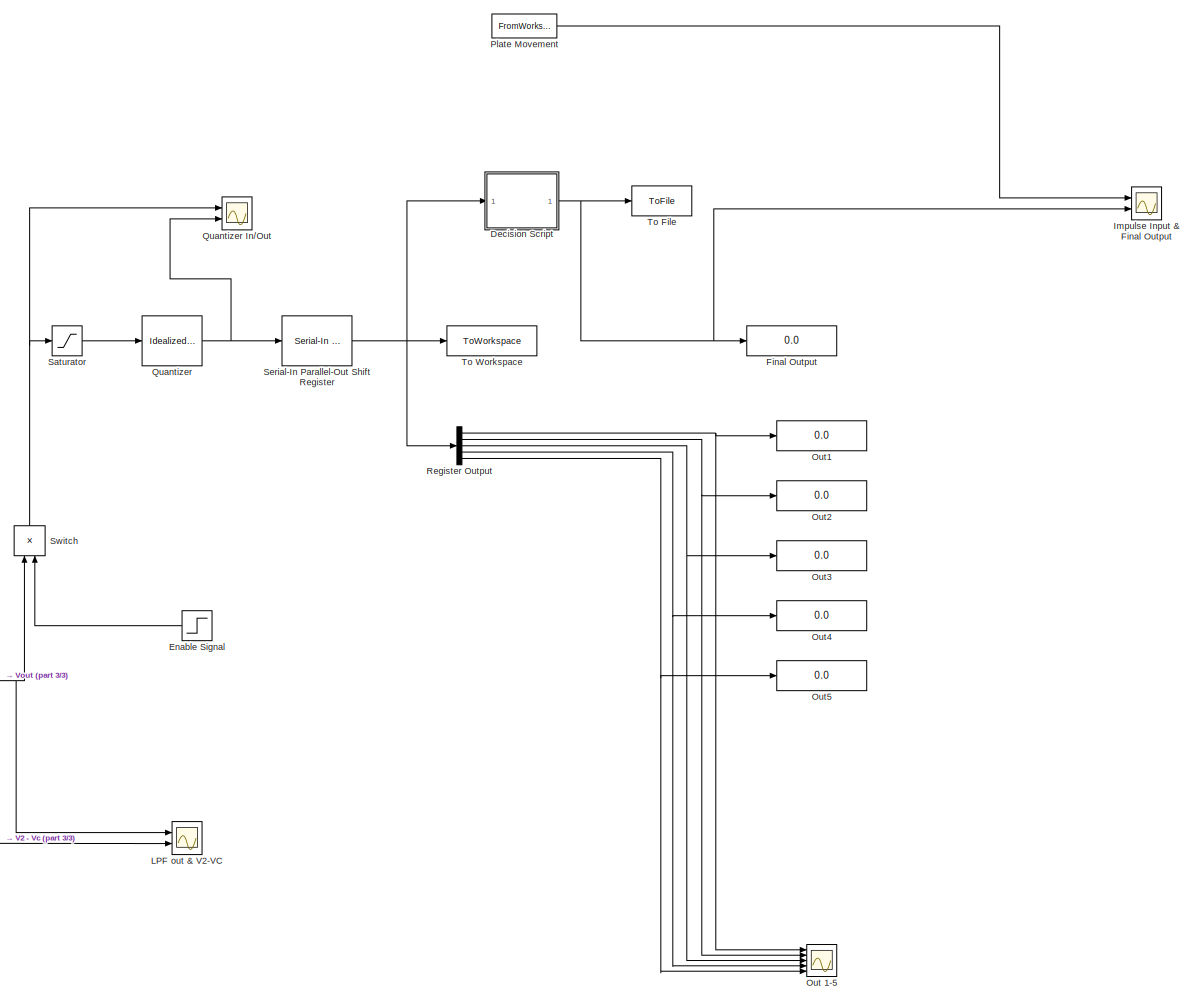
[diagram: root canvas - part 1/3, right side, full height]
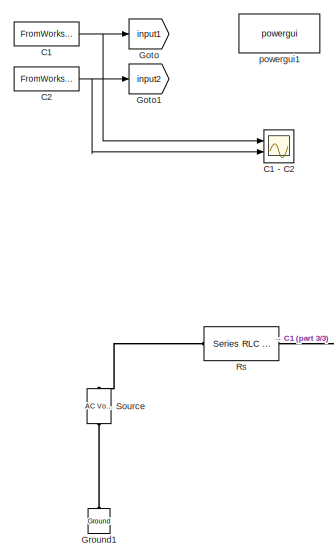
[diagram: root canvas - part 2/3, middle left region]
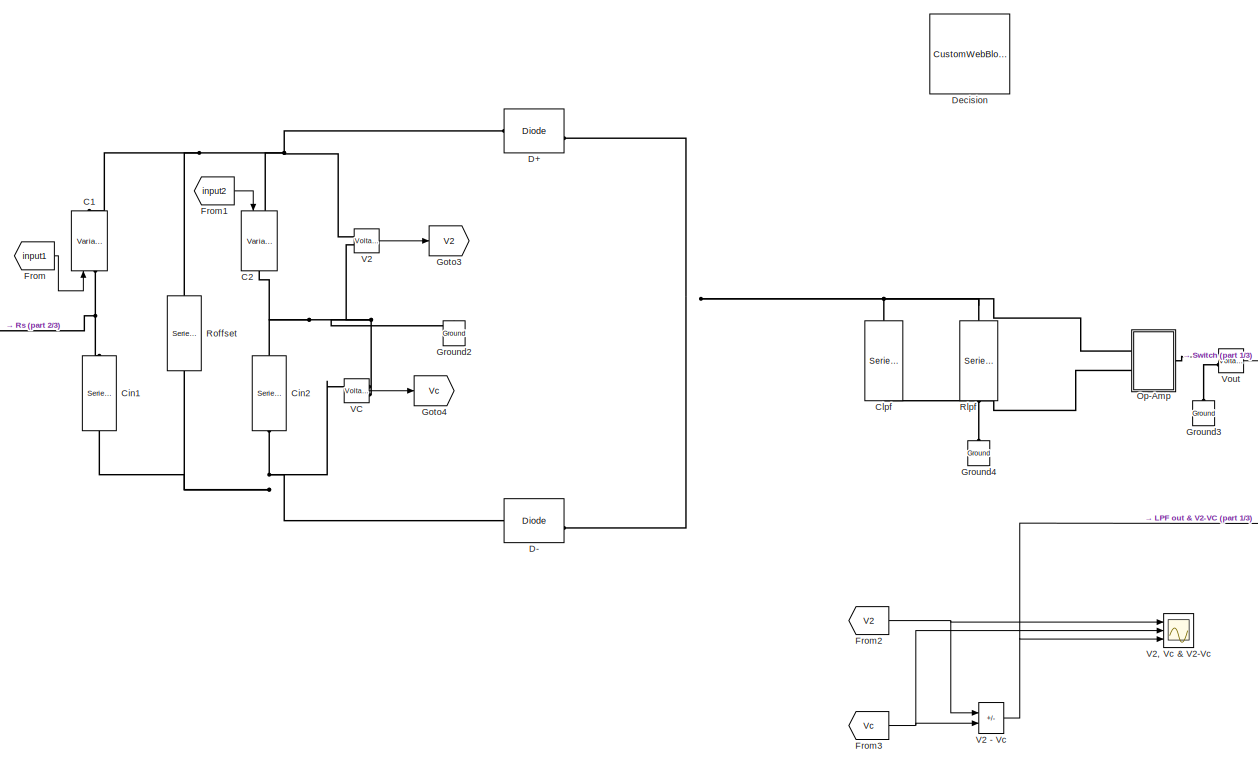
[diagram: root canvas - part 3/3, central region]
MODEL slx_b4848499d454
KIND model
CONFIG AbsTol = auto
CONFIG EnableMultiTasking = off
CONFIG FixedStep = auto
CONFIG MaxStep = 1e-5
CONFIG MinStep = auto
CONFIG RelTol = 1e-3
CONFIG SampleTimeConstraint = Unconstrained
CONFIG SolverName = ode23tb
CONFIG StartTime = 0.0
CONFIG StopTime = 0.0015
BLOCK [Reference] C1  REF=spsVariableCapacitorLib/Variable Capacitor
  NameLocation = right
  Ports = [1, 0, 0, 0, 0, 1, 1]
  SourceBlock = spsVariableCapacitorLib/Variable Capacitor
  SourceProductBaseCode = PS
  SourceType = Variable Capacitor
BLOCK [FromWorkspace] C1 
  VariableName = input_C1
BLOCK [Scope] C1 - C2
  Floating = off
  NumInputPorts = 2
  Ports = [2]
  ScopeSpecificationString = Simulink.scopes.TimeScopeBlockCfg('CurrentConfiguration', extmgr.ConfigurationSet(extmgr.Configuration('Core','General UI',true),extmgr.Configuration('Core','Source UI',true),extmgr.Configuration('Sources','WiredSimulink',true,'DataLoggingVariableName','ScopeData2'),extmgr.Configuration('Visuals','Time Domain',true,'SerializedDisplays',{struct('MinYLimReal','0.0000000000','MaxYLimReal','0.00000000...<+2085ch>
BLOCK [Reference] C2  REF=spsVariableCapacitorLib/Variable Capacitor
  NameLocation = right
  Ports = [1, 0, 0, 0, 0, 1, 1]
  SourceBlock = spsVariableCapacitorLib/Variable Capacitor
  SourceProductBaseCode = PS
  SourceType = Variable Capacitor
BLOCK [FromWorkspace] C2 
  VariableName = input_C2
BLOCK [Reference] Cin1  REF=spsSeriesRLCBranchLib/Series RLC Branch
  NameLocation = left
  Ports = [0, 0, 0, 0, 0, 1, 1]
  SourceBlock = spsSeriesRLCBranchLib/Series RLC Branch
  SourceProductBaseCode = PS
  SourceType = Series RLC Branch
BLOCK [Reference] Cin2  REF=spsSeriesRLCBranchLib/Series RLC Branch
  NameLocation = right
  Ports = [0, 0, 0, 0, 0, 1, 1]
  SourceBlock = spsSeriesRLCBranchLib/Series RLC Branch
  SourceProductBaseCode = PS
  SourceType = Series RLC Branch
BLOCK [Reference] Clpf  REF=spsSeriesRLCBranchLib/Series RLC Branch
  NameLocation = left
  Ports = [0, 0, 0, 0, 0, 1, 1]
  SourceBlock = spsSeriesRLCBranchLib/Series RLC Branch
  SourceProductBaseCode = PS
  SourceType = Series RLC Branch
BLOCK [Reference] D+  REF=spsDiodeLib/Diode
  Ports = [0, 1, 0, 0, 0, 1, 1]
  SourceBlock = spsDiodeLib/Diode
  SourceProductBaseCode = PS
  SourceType = Diode
BLOCK [Reference] D-  REF=spsDiodeLib/Diode
  Ports = [0, 1, 0, 0, 0, 1, 1]
  SourceBlock = spsDiodeLib/Diode
  SourceProductBaseCode = PS
  SourceType = Diode
BLOCK [CustomWebBlock] Decision
  Configuration = {"components":[{"name":"BackgroundImageComponent","settings":{"image":{"size":[150,150],"src":"data:image\/svg+xml;base64,PHN2ZyB4bWxucz0iaHR0cDovL3d3dy53My5vcmcvMjAwMC9zdmciIHhtbG5zOnhsaW5rPSJodHRwOi8vd3d3LnczLm9yZy8xOTk5L3hsaW5rIiB2aWV3Qm94PSIwIDAgNTAwIDUwMCI+PGRlZnM+PHN0eWxlPi5he2ZpbGw6dXJsKCNhKTt9LmJ7ZmlsbDp1cmwoI2IpO30uY3tmaWxsOnVybCgjYyk7fTwvc3R5bGU+PHJhZGlhbEdyYWRpZW50IGlkPSJhIiBjeD0iMjgzLj...<+21337ch>
  LabelPosition = Hide
  ShowInitialText = on
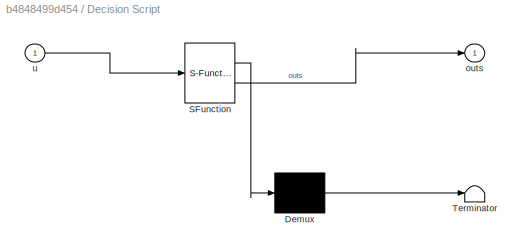
BLOCK [SubSystem] Decision Script
  ErrorFcn = Stateflow.Translate.translate
  PermitHierarchicalResolution = ExplicitOnly
  Ports = [1, 1]
  RequestExecContextInheritance = off
  SFBlockType = MATLAB Function
  TreatAsAtomicUnit = on
BLOCK [Demux] Decision Script/ Demux 
  Outputs = 1
  Ports = [1, 1]
BLOCK [S-Function] Decision Script/ SFunction 
  EnableBusSupport = on
  FunctionName = sf_sfun
  PortCounts = [1 2]
  Ports = [1, 2]
  SFcnIsStateOwnerBlock = off
  SFunctionDeploymentMode = off
  Tag = Stateflow S-Function 2
BLOCK [Terminator] Decision Script/ Terminator 
BLOCK [Outport] Decision Script/outs
BLOCK [Inport] Decision Script/u
BLOCK [Step] Enable  Signal
  SampleTime = 0
  Time = 3e-4
BLOCK [Display] Final Output
  Decimation = 1
  Ports = [1]
BLOCK [From] From
  GotoTag = input1
BLOCK [From] From1
  GotoTag = input2
BLOCK [From] From2
  GotoTag = V2
BLOCK [From] From3
  GotoTag = Vc
BLOCK [Goto] Goto
  GotoTag = input1
BLOCK [Goto] Goto1
  GotoTag = input2
BLOCK [Goto] Goto3
  GotoTag = V2
BLOCK [Goto] Goto4
  GotoTag = Vc
BLOCK [Reference] Ground1  REF=spsGroundLib/Ground
  NameLocation = right
  Ports = [0, 0, 0, 0, 0, 1]
  SourceBlock = spsGroundLib/Ground
  SourceProductBaseCode = PS
  SourceType = Ground
BLOCK [Reference] Ground2  REF=spsGroundLib/Ground
  NameLocation = right
  Ports = [0, 0, 0, 0, 0, 1]
  SourceBlock = spsGroundLib/Ground
  SourceProductBaseCode = PS
  SourceType = Ground
BLOCK [Reference] Ground3  REF=spsGroundLib/Ground
  NameLocation = right
  Ports = [0, 0, 0, 0, 0, 1]
  SourceBlock = spsGroundLib/Ground
  SourceProductBaseCode = PS
  SourceType = Ground
BLOCK [Reference] Ground4  REF=spsGroundLib/Ground
  NameLocation = right
  Ports = [0, 0, 0, 0, 0, 1]
  SourceBlock = spsGroundLib/Ground
  SourceProductBaseCode = PS
  SourceType = Ground
BLOCK [Scope] Impulse Input & Final Output
  Floating = off
  NumInputPorts = 2
  Ports = [2]
  ScopeSpecificationString = Simulink.scopes.TimeScopeBlockCfg('CurrentConfiguration', extmgr.ConfigurationSet(extmgr.Configuration('Core','General UI',true),extmgr.Configuration('Core','Source UI',true),extmgr.Configuration('Sources','WiredSimulink',true,'DataLoggingVariableName','ScopeData1'),extmgr.Configuration('Visuals','Time Domain',true,'SerializedDisplays',{struct('MinYLimReal','-0.0118','MaxYLimReal','0.01968','YLabe...<+2098ch>
BLOCK [Scope] LPF out & V2-VC
  Floating = off
  NumInputPorts = 2
  Ports = [2]
  ScopeSpecificationString = Simulink.scopes.TimeScopeBlockCfg('CurrentConfiguration', extmgr.ConfigurationSet(extmgr.Configuration('Core','General UI',true),extmgr.Configuration('Core','Source UI',true),extmgr.Configuration('Sources','WiredSimulink',true,'DataLoggingVariableName','ScopeData3'),extmgr.Configuration('Visuals','Time Domain',true,'SerializedDisplays',{struct('MinYLimReal','-1.02149','MaxYLimReal','9.1934','YLabe...<+2054ch>
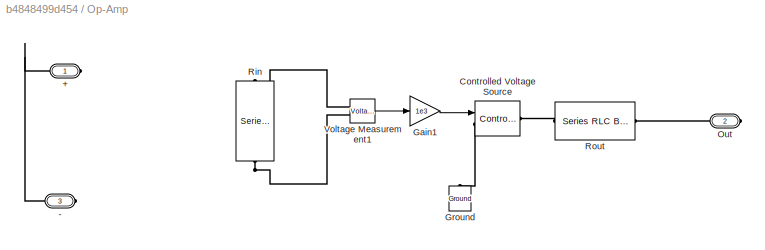
BLOCK [SubSystem] Op-Amp
  Ports = [0, 0, 0, 0, 0, 2, 1]
  RequestExecContextInheritance = off
BLOCK [PMIOPort] Op-Amp/+
  Side = Left
BLOCK [PMIOPort] Op-Amp/-
  Port = 3
  Side = Left
BLOCK [Reference] Op-Amp/Controlled Voltage Source  REF=spsControlledVoltageSourceLib/Controlled Voltage Source
  NameLocation = left
  Ports = [1, 0, 0, 0, 0, 1, 1]
  SourceBlock = spsControlledVoltageSourceLib/Controlled Voltage Source
  SourceProductBaseCode = PS
  SourceType = Controlled Voltage Source
BLOCK [Gain] Op-Amp/Gain1
  Gain = 1e3
BLOCK [Reference] Op-Amp/Ground  REF=spsGroundLib/Ground
  NameLocation = right
  Ports = [0, 0, 0, 0, 0, 1]
  SourceBlock = spsGroundLib/Ground
  SourceProductBaseCode = PS
  SourceType = Ground
BLOCK [PMIOPort] Op-Amp/Out
  Port = 2
  Side = Right
BLOCK [Reference] Op-Amp/Rin  REF=spsSeriesRLCBranchLib/Series RLC Branch
  NameLocation = left
  Ports = [0, 0, 0, 0, 0, 1, 1]
  SourceBlock = spsSeriesRLCBranchLib/Series RLC Branch
  SourceProductBaseCode = PS
  SourceType = Series RLC Branch
BLOCK [Reference] Op-Amp/Rout  REF=spsSeriesRLCBranchLib/Series RLC Branch
  Ports = [0, 0, 0, 0, 0, 1, 1]
  SourceBlock = spsSeriesRLCBranchLib/Series RLC Branch
  SourceProductBaseCode = PS
  SourceType = Series RLC Branch
BLOCK [Reference] Op-Amp/Voltage Measurement1  REF=spsVoltageMeasurementLib/Voltage Measurement
  Ports = [0, 1, 0, 0, 0, 2]
  SourceBlock = spsVoltageMeasurementLib/Voltage Measurement
  SourceProductBaseCode = PS
  SourceType = Voltage Measurement
  UserDataPersistent = on
BLOCK [Scope] Out 1-5
  Floating = off
  NumInputPorts = 5
  Ports = [5]
  ScopeSpecificationString = Simulink.scopes.TimeScopeBlockCfg('CurrentConfiguration', extmgr.ConfigurationSet(extmgr.Configuration('Core','General UI',true),extmgr.Configuration('Core','Source UI',true),extmgr.Configuration('Sources','WiredSimulink',true,'DataLoggingVariableName','ScopeData1'),extmgr.Configuration('Visuals','Time Domain',true,'SerializedDisplays',{struct('MinYLimReal','-24.375','MaxYLimReal','219.375','YLabe...<+1554ch>
BLOCK [Display] Out1
  Decimation = 1
  Ports = [1]
BLOCK [Display] Out2
  Decimation = 1
  Ports = [1]
BLOCK [Display] Out3
  Decimation = 1
  Ports = [1]
BLOCK [Display] Out4
  Decimation = 1
  Ports = [1]
BLOCK [Display] Out5
  Decimation = 1
  Ports = [1]
BLOCK [FromWorkspace] Plate Movement
  VariableName = input_x
BLOCK [Reference] Quantizer  REF=simulink_extras/Additional
Discrete/Idealized ADC quantizer
  AttributesFormatString = (settings: %<NumberOfConverterBits>-bit converter\nVmin: %<Vmin>, Vmax: %<Vmax>)
  Ports = [1, 1]
  SourceBlock = simulink_extras/Additional\nDiscrete/Idealized ADC quantizer
  SourceProductBaseCode = SL
  SourceType = IdealADC
BLOCK [Scope] Quantizer In//Out
  Floating = off
  NumInputPorts = 2
  Ports = [2]
  ScopeSpecificationString = Simulink.scopes.TimeScopeBlockCfg('CurrentConfiguration', extmgr.ConfigurationSet(extmgr.Configuration('Core','General UI',true),extmgr.Configuration('Core','Source UI',true),extmgr.Configuration('Sources','WiredSimulink',true,'DataLoggingVariableName','ScopeData1'),extmgr.Configuration('Visuals','Time Domain',true,'SerializedDisplays',{struct('MinYLimReal','-0.38188','MaxYLimReal','3.4369','YLabe...<+2057ch>
BLOCK [Demux] Register Output
  Outputs = 5
  Ports = [1, 5]
BLOCK [Reference] Rlpf  REF=spsSeriesRLCBranchLib/Series RLC Branch
  NameLocation = left
  Ports = [0, 0, 0, 0, 0, 1, 1]
  SourceBlock = spsSeriesRLCBranchLib/Series RLC Branch
  SourceProductBaseCode = PS
  SourceType = Series RLC Branch
BLOCK [Reference] Roffset  REF=spsSeriesRLCBranchLib/Series RLC Branch
  NameLocation = right
  Ports = [0, 0, 0, 0, 0, 1, 1]
  SourceBlock = spsSeriesRLCBranchLib/Series RLC Branch
  SourceProductBaseCode = PS
  SourceType = Series RLC Branch
BLOCK [Reference] Rs  REF=spsSeriesRLCBranchLib/Series RLC Branch
  NameLocation = top
  Ports = [0, 0, 0, 0, 0, 1, 1]
  SourceBlock = spsSeriesRLCBranchLib/Series RLC Branch
  SourceProductBaseCode = PS
  SourceType = Series RLC Branch
BLOCK [Saturate] Saturator
  LowerLimit = 0
  UpperLimit = 4
BLOCK [Reference] Serial-In Parallel-Out Shift Register  REF=eeGeneralControl/Serial-In Parallel-Out
Shift Register
  Ports = [1, 1]
  SourceBlock = eeGeneralControl/Serial-In Parallel-Out\nShift Register
  SourceProductBaseCode = PS
  SourceType = Serial-In Parallel-Out Shift Register
BLOCK [Reference] Source  REF=spsACVoltageSourceLib/AC Voltage Source
  Ports = [0, 0, 0, 0, 0, 1, 1]
  SourceBlock = spsACVoltageSourceLib/AC Voltage Source
  SourceProductBaseCode = PS
  SourceType = AC Voltage Source
BLOCK [Product] Switch
  Inputs = **
  NameLocation = right
  Ports = [2, 1]
BLOCK [ToFile] To File
  Filename = outputs.mat
  MatrixName = outputs
  Ports = [1]
BLOCK [ToWorkspace] To Workspace
  FixptAsFi = on
  MaxDataPoints = inf
  Ports = [1]
  SampleTime = -1
  SaveFormat = Timeseries
  VariableName = simout
BLOCK [Reference] V2  REF=spsVoltageMeasurementLib/Voltage Measurement
  Ports = [0, 1, 0, 0, 0, 2]
  SourceBlock = spsVoltageMeasurementLib/Voltage Measurement
  SourceProductBaseCode = PS
  SourceType = Voltage Measurement
  UserDataPersistent = on
BLOCK [Sum] V2 - Vc
  IconShape = rectangular
  Inputs = +-
  Ports = [2, 1]
BLOCK [Scope] V2, Vc & V2-Vc
  Floating = off
  NumInputPorts = 3
  Ports = [3]
  ScopeSpecificationString = Simulink.scopes.TimeScopeBlockCfg('CurrentConfiguration', extmgr.ConfigurationSet(extmgr.Configuration('Core','General UI',true),extmgr.Configuration('Core','Source UI',true),extmgr.Configuration('Sources','WiredSimulink',true),extmgr.Configuration('Visuals','Time Domain',true,'SerializedDisplays',{struct('MinYLimReal','-20.47324','MaxYLimReal','3.06169','YLabelReal','','MinYLimMag','0.00000','Max...<+2678ch>
BLOCK [Reference] VC  REF=spsVoltageMeasurementLib/Voltage Measurement
  Ports = [0, 1, 0, 0, 0, 2]
  SourceBlock = spsVoltageMeasurementLib/Voltage Measurement
  SourceProductBaseCode = PS
  SourceType = Voltage Measurement
  UserDataPersistent = on
BLOCK [Reference] Vout  REF=spsVoltageMeasurementLib/Voltage Measurement
  Ports = [0, 1, 0, 0, 0, 2]
  SourceBlock = spsVoltageMeasurementLib/Voltage Measurement
  SourceProductBaseCode = PS
  SourceType = Voltage Measurement
  UserDataPersistent = on
BLOCK [Reference] powergui1  REF=spspowerguiLib/powergui
  Ports = []
  Priority = 1
  SourceBlock = spspowerguiLib/powergui
  SourceProductBaseCode = PS
  SourceType = PSB option menu block
NET C1 :1 -> C1 - C2:1, Goto:1
NET C2 :1 -> C1 - C2:2, Goto1:1
NET Decision Script:1 -> Final Output:1, Impulse Input & Final Output:2, To File:1
LINE Enable  Signal:1 -> Switch:2
LINE From1:1 -> C2:1
NET From2:1 -> V2 - Vc:1, V2, Vc & V2-Vc:1
NET From3:1 -> V2 - Vc:2, V2, Vc & V2-Vc:2
LINE From:1 -> C1:1
LINE Op-Amp/Gain1:1 -> Op-Amp/Controlled Voltage Source:1
LINE Op-Amp/Voltage Measurement1:1 -> Op-Amp/Gain1:1
LINE Plate Movement:1 -> Impulse Input & Final Output:1
NET Quantizer:1 -> Quantizer In//Out:2, Serial-In Parallel-Out Shift Register:1
NET Register Output:1 -> Out 1-5:1, Out1:1
NET Register Output:2 -> Out 1-5:2, Out2:1
NET Register Output:3 -> Out 1-5:3, Out3:1
NET Register Output:4 -> Out 1-5:4, Out4:1
NET Register Output:5 -> Out 1-5:5, Out5:1
LINE Saturator:1 -> Quantizer:1
NET Serial-In Parallel-Out Shift Register:1 -> Decision Script:1, Register Output:1, To Workspace:1
NET Switch:1 -> Quantizer In//Out:1, Saturator:1
NET V2 - Vc:1 -> LPF out & V2-VC:2, V2, Vc & V2-Vc:3
LINE V2:1 -> Goto3:1
LINE VC:1 -> Goto4:1
NET Vout:1 -> LPF out & V2-VC:1, Switch:1
PNET net1: C1:LConn1 -- Cin1:LConn1 -- Rs:RConn1
PNET net2: C1:RConn1 -- C2:LConn1 -- D+:LConn1 -- Roffset:LConn1 -- V2:LConn1
PNET net3: C2:RConn1 -- Cin2:RConn1 -- Ground2:LConn1 -- V2:LConn2 -- VC:LConn2
PNET net4: Cin1:RConn1 -- Cin2:LConn1 -- D-:LConn1 -- Roffset:RConn1 -- VC:LConn1
PNET net5: Clpf:LConn1 -- D+:RConn1 -- D-:RConn1 -- Op-Amp:LConn1 -- Rlpf:LConn1
PNET net6: Clpf:RConn1 -- Ground4:LConn1 -- Op-Amp:LConn2 -- Rlpf:RConn1
PLINE Ground1:LConn1 -- Source:LConn1
PLINE Ground3:LConn1 -- Vout:LConn2
PNET net7: Op-Amp/+:RConn1 -- Op-Amp/Rin:LConn1 -- Op-Amp/Voltage Measurement1:LConn1
PNET net8: Op-Amp/-:RConn1 -- Op-Amp/Rin:RConn1 -- Op-Amp/Voltage Measurement1:LConn2
PLINE Op-Amp/Controlled Voltage Source:LConn1 -- Op-Amp/Ground:LConn1
PLINE Op-Amp/Controlled Voltage Source:RConn1 -- Op-Amp/Rout:LConn1
PLINE Op-Amp/Out:RConn1 -- Op-Amp/Rout:RConn1
PLINE Op-Amp:RConn1 -- Vout:LConn1
PLINE Rs:LConn1 -- Source:RConn1
note: NET lines group one-source signal fan-out (src -> all destinations, sorted); 1:1 wires keep LINE; PNET lines group multi-terminal physical nets as a canonical sorted terminal list (undirected conserving connections); 2-terminal nets keep the pairwise PLINE form
CHART Decision Script states=1 transitions=1
  STATE_LABEL 'eML_blk_kernel()'
  STATE_LABEL 'SCRIPT:\nfunction outs = fcn(u)\n\nthreshold = 180;\n\ny = 0;\nif (u(1)+u(2)+u(3)+u(4)+u(5))/5 > threshold\ny = 1;\nend\n\nouts = y;\n'
CHART  states=0 transitions=0
